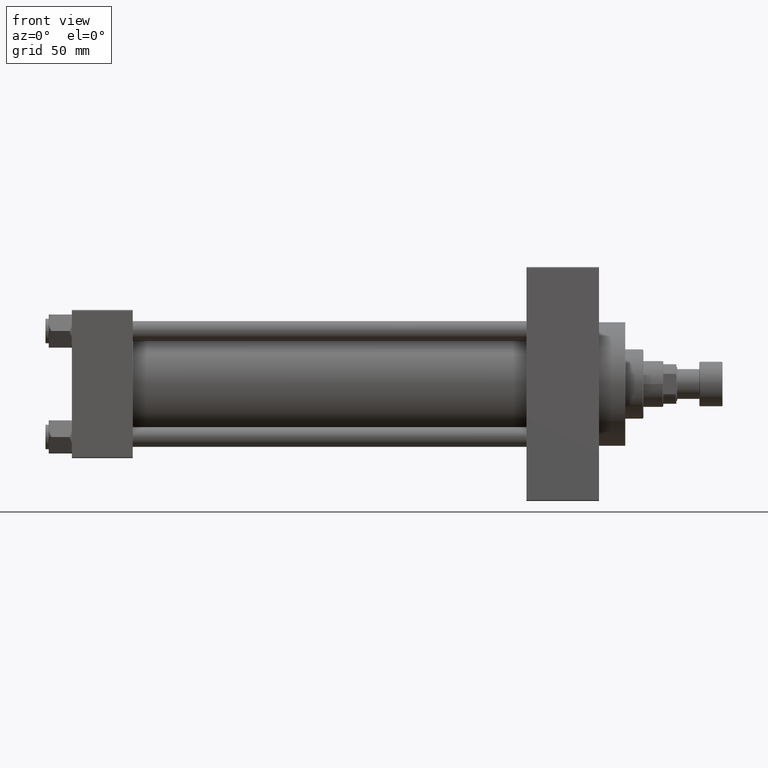
[diagram: clean part render]
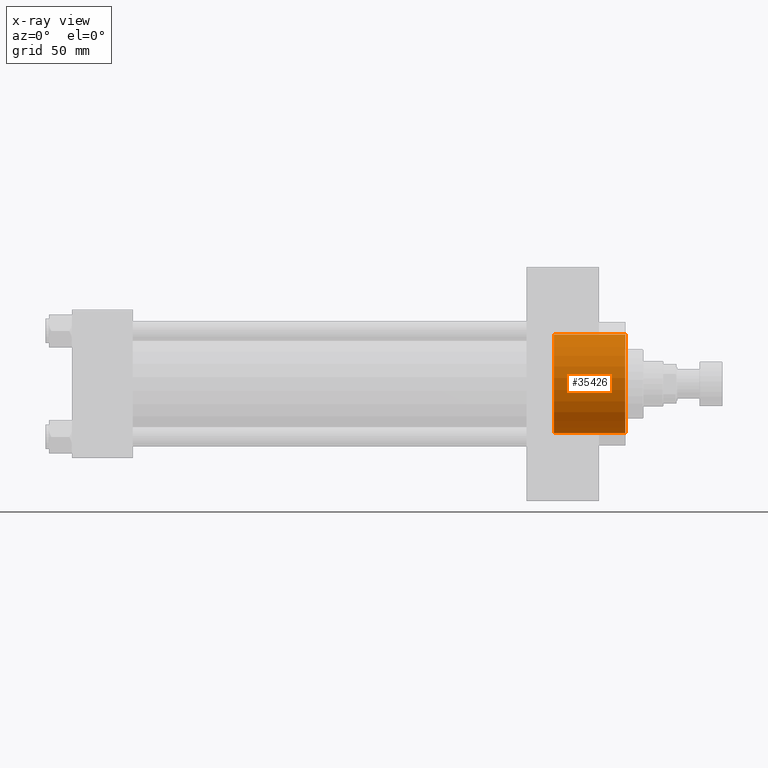
[diagram: x-ray — body ghosted, one internal face saturated and labeled with its STEP entity id]
A machine part, front view, then the same camera in x-ray: the body is ghosted and one INTERNAL B-rep face — a face not visible from any outside direction — is saturated and labeled: STEP entity #35426.
In plain terms, the highlighted cylindrical surface (partial cylindrical patch) has radius 30 mm, axis along (1, 0, 0).
Its self-contained STEP definition (entity closure, byte-faithful):
#1135 = VERTEX_POINT ( 'NONE', #15515 ) ;
#1178 = ORIENTED_EDGE ( 'NONE', *, *, #1827, .T. ) ;
#1325 = EDGE_LOOP ( 'NONE', ( #11677, #10439, #1178, #7583 ) ) ;
#1525 = CYLINDRICAL_SURFACE ( 'NONE', #2431, 30.00000000000000000 ) ;
#1640 = DIRECTION ( 'NONE',  ( 0.000000000000000000, 0.000000000000000000, -1.000000000000000000 ) ) ;
#1827 = EDGE_CURVE ( 'NONE', #42212, #1135, #19199, .T. ) ;
#1972 = LINE ( 'NONE', #42000, #32301 ) ;
#2431 = AXIS2_PLACEMENT_3D ( 'NONE', #4416, #45668, #35974 ) ;
#2470 = CARTESIAN_POINT ( 'NONE',  ( 292.7399999999999523, 0.000000000000000000, -30.00000000000000000 ) ) ;
#2591 = CARTESIAN_POINT ( 'NONE',  ( 335.9999999999999432, 3.673940397442059178E-15, 30.00000000000000000 ) ) ;
#4416 = CARTESIAN_POINT ( 'NONE',  ( 292.7399999999999523, 0.000000000000000000, 0.000000000000000000 ) ) ;
#5076 = EDGE_CURVE ( 'NONE', #40622, #1135, #25458, .T. ) ;
#6043 = CARTESIAN_POINT ( 'NONE',  ( 292.7399999999999523, 0.000000000000000000, 0.000000000000000000 ) ) ;
#7583 = ORIENTED_EDGE ( 'NONE', *, *, #5076, .F. ) ;
#8403 = AXIS2_PLACEMENT_3D ( 'NONE', #6043, #46339, #20728 ) ;
#8962 = DIRECTION ( 'NONE',  ( 1.000000000000000000, -0.000000000000000000, -0.000000000000000000 ) ) ;
#9226 = VECTOR ( 'NONE', #44757, 1000.000000000000000 ) ;
#10439 = ORIENTED_EDGE ( 'NONE', *, *, #45050, .T. ) ;
#11677 = ORIENTED_EDGE ( 'NONE', *, *, #29745, .F. ) ;
#15515 = CARTESIAN_POINT ( 'NONE',  ( 335.9999999999999432, 0.000000000000000000, -30.00000000000000000 ) ) ;
#16789 = AXIS2_PLACEMENT_3D ( 'NONE', #24039, #31033, #1640 ) ;
#19199 = CIRCLE ( 'NONE', #16789, 30.00000000000000000 ) ;
#20728 = DIRECTION ( 'NONE',  ( 0.000000000000000000, 0.000000000000000000, -1.000000000000000000 ) ) ;
#24039 = CARTESIAN_POINT ( 'NONE',  ( 335.9999999999999432, 0.000000000000000000, 0.000000000000000000 ) ) ;
#25458 = LINE ( 'NONE', #40191, #9226 ) ;
#29745 = EDGE_CURVE ( 'NONE', #42540, #40622, #34593, .T. ) ;
#31033 = DIRECTION ( 'NONE',  ( 1.000000000000000000, 0.000000000000000000, 0.000000000000000000 ) ) ;
#32301 = VECTOR ( 'NONE', #8962, 1000.000000000000000 ) ;
#34593 = CIRCLE ( 'NONE', #8403, 30.00000000000000000 ) ;
#35426 = ADVANCED_FACE ( 'NONE', ( #37451 ), #1525, .F. ) ;
#35974 = DIRECTION ( 'NONE',  ( 0.000000000000000000, 0.000000000000000000, -1.000000000000000000 ) ) ;
#37451 = FACE_OUTER_BOUND ( 'NONE', #1325, .T. ) ;
#37454 = CARTESIAN_POINT ( 'NONE',  ( 292.7399999999999523, 3.673940397442059178E-15, 30.00000000000000000 ) ) ;
#40191 = CARTESIAN_POINT ( 'NONE',  ( 292.7399999999999523, 0.000000000000000000, -30.00000000000000000 ) ) ;
#40622 = VERTEX_POINT ( 'NONE', #2470 ) ;
#42000 = CARTESIAN_POINT ( 'NONE',  ( 292.7399999999999523, 3.673940397442059178E-15, 30.00000000000000000 ) ) ;
#42212 = VERTEX_POINT ( 'NONE', #2591 ) ;
#42540 = VERTEX_POINT ( 'NONE', #37454 ) ;
#44757 = DIRECTION ( 'NONE',  ( 1.000000000000000000, -0.000000000000000000, -0.000000000000000000 ) ) ;
#45050 = EDGE_CURVE ( 'NONE', #42540, #42212, #1972, .T. ) ;
#45668 = DIRECTION ( 'NONE',  ( 1.000000000000000000, -0.000000000000000000, -0.000000000000000000 ) ) ;
#46339 = DIRECTION ( 'NONE',  ( 1.000000000000000000, 0.000000000000000000, 0.000000000000000000 ) ) ;